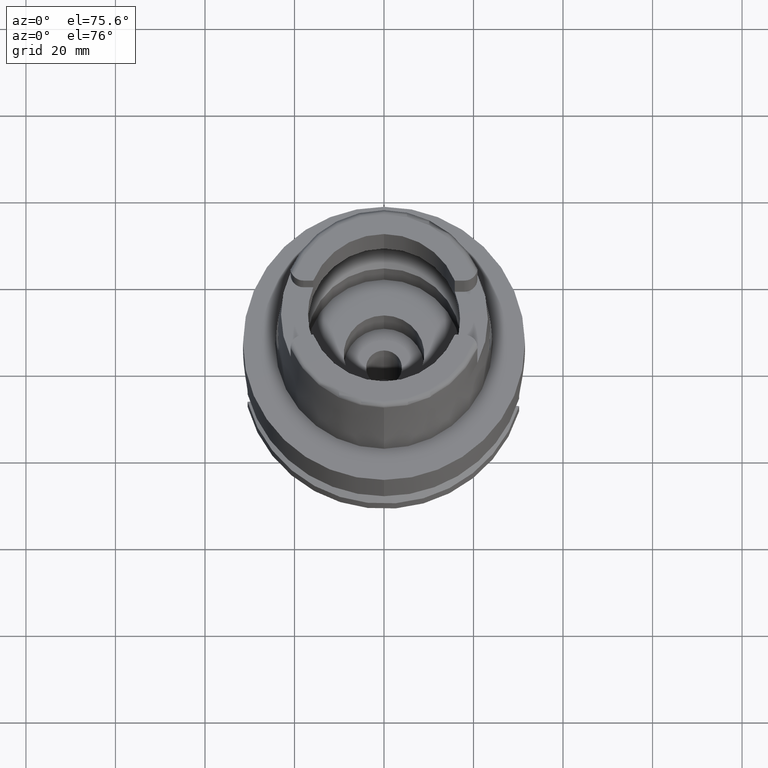
[diagram: clean part render]
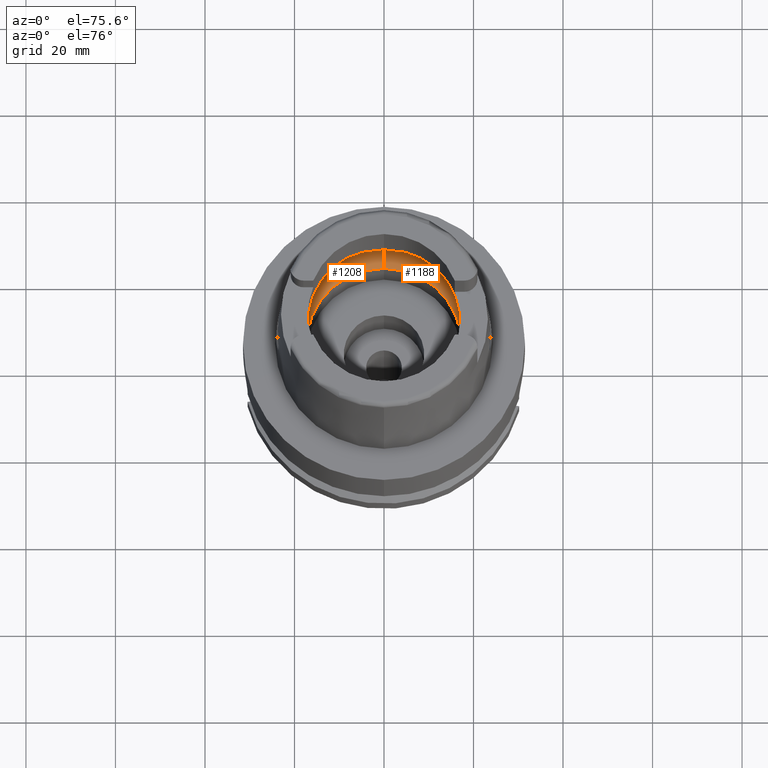
[diagram: same view with one multi-face feature highlighted, each face labeled with its STEP entity id]
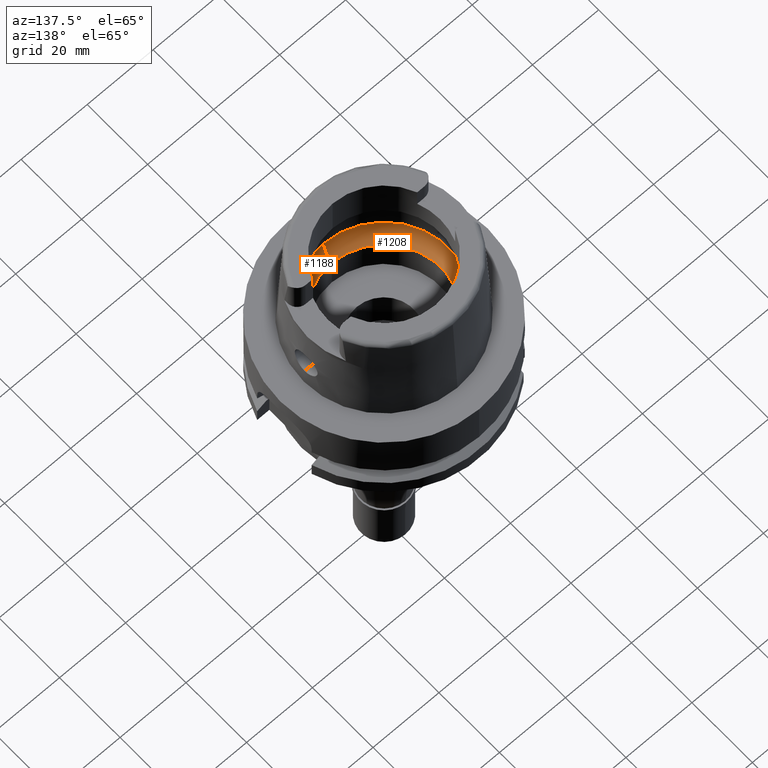
[diagram: same view with one multi-face feature highlighted, each face labeled with its STEP entity id]
A machine part, auxiliary view. The highlighted faces form ONE feature: a constant-radius fillet chain: 2 tangent blend faces with common blend radius 8 mm. The faces share edges in the B-rep.
A second angle (auxiliary view) of the same feature is appended — it is thin or edge-on in the first view.
Their STEP definitions:
[1] entity #1208 (Torus):
#37 = VERTEX_POINT ( 'NONE', #696 ) ;
#116 = CARTESIAN_POINT ( 'NONE',  ( -19.84575864665999845, -2.479085262491000030, 6.186348233825000875 ) ) ;
#129 = EDGE_LOOP ( 'NONE', ( #2428, #4913, #3546, #831, #1566, #3601, #4951 ) ) ;
#163 = EDGE_CURVE ( 'NONE', #3344, #1386, #172, .T. ) ;
#172 = CIRCLE ( 'NONE', #862, 7.999999999999992895 ) ;
#201 = CARTESIAN_POINT ( 'NONE',  ( -19.92547016831344209, -1.335028391786409419, 5.495682638916796314 ) ) ;
#282 = CARTESIAN_POINT ( 'NONE',  ( -19.93856669999437514, 0.8185612903796806172, 5.338678534769514705 ) ) ;
#398 = DIRECTION ( 'NONE',  ( -1.000000000000000000, 0.0000000000000000000, 0.0000000000000000000 ) ) ;
#504 = TOROIDAL_SURFACE ( 'NONE', #2360, 12.00000000000000000, 8.000000000000000000 ) ;
#524 = CARTESIAN_POINT ( 'NONE',  ( -19.92208503460747337, -1.430038535502192065, 5.533134759062107833 ) ) ;
#664 = CARTESIAN_POINT ( 'NONE',  ( -19.94501428476000271, 0.2480004543639204029, 5.249999999999999112 ) ) ;
#696 = CARTESIAN_POINT ( 'NONE',  ( -19.84575864665999845, 2.479085262491000030, 6.186348233825000875 ) ) ;
#709 = B_SPLINE_CURVE_WITH_KNOTS ( 'NONE', 3,
 ( #116, #2677, #3477, #1407, #3094, #1853, #3974, #524, #4350, #2234, #1465, #201, #5155, #2649, #1434 ),
 .UNSPECIFIED., .F., .F.,
 ( 4, 2, 2, 1, 1, 1, 2, 2, 4 ),
 ( 0.0000000000000000000, 0.2499999999999968914, 0.3749999999999954481, 0.4374999999999947264, 0.4687499999999943934, 0.4843749999999941713, 0.4921874999999943934, 0.4999999999999945599, 1.000000000000000000 ),
 .UNSPECIFIED. ) ;
#760 = CARTESIAN_POINT ( 'NONE',  ( 0.0000000000000000000, -12.00000000000000000, 6.186348233825000875 ) ) ;
#774 = AXIS2_PLACEMENT_3D ( 'NONE', #3138, #4395, #3932 ) ;
#831 = ORIENTED_EDGE ( 'NONE', *, *, #163, .T. ) ;
#862 = AXIS2_PLACEMENT_3D ( 'NONE', #5296, #4128, #5371 ) ;
#870 = CARTESIAN_POINT ( 'NONE',  ( 0.0000000000000000000, 20.00000000000000000, 6.186348233825000875 ) ) ;
#944 = EDGE_CURVE ( 'NONE', #3747, #4342, #1644, .T. ) ;
#1123 = CARTESIAN_POINT ( 'NONE',  ( -19.93655182975511053, 0.9261173408848780708, 5.364558887407480547 ) ) ;
#1131 = CARTESIAN_POINT ( 'NONE',  ( 0.0000000000000000000, 0.0000000000000000000, 6.186348233825000875 ) ) ;
#1208 = ADVANCED_FACE ( 'NONE', ( #2104 ), #504, .F. ) ;
#1228 = CARTESIAN_POINT ( 'NONE',  ( -19.88332307774798835, 2.178371670853991304, 5.921391979387152560 ) ) ;
#1386 = VERTEX_POINT ( 'NONE', #870 ) ;
#1407 = CARTESIAN_POINT ( 'NONE',  ( -19.90056792326593893, -1.871072945734564286, 5.748194156571076796 ) ) ;
#1434 = CARTESIAN_POINT ( 'NONE',  ( -19.94501428475999916, 0.0000000000000000000, 5.250000000000000000 ) ) ;
#1465 = CARTESIAN_POINT ( 'NONE',  ( -19.92517794959959332, -1.343610331912327149, 5.498961333877063318 ) ) ;
#1566 = ORIENTED_EDGE ( 'NONE', *, *, #2367, .F. ) ;
#1573 = CARTESIAN_POINT ( 'NONE',  ( -19.92607293039359462, 1.317057967890473247, 5.488889127078770969 ) ) ;
#1639 = EDGE_CURVE ( 'NONE', #3344, #2209, #5261, .T. ) ;
#1644 = CIRCLE ( 'NONE', #2616, 20.00000000000000000 ) ;
#1772 = CARTESIAN_POINT ( 'NONE',  ( 0.0000000000000000000, 0.0000000000000000000, 6.186348233825000875 ) ) ;
#1853 = CARTESIAN_POINT ( 'NONE',  ( -19.91448534792939640, -1.610508948476730318, 5.612924528917788258 ) ) ;
#1930 = DIRECTION ( 'NONE',  ( -0.9922879323327794543, 0.1239542631244973381, 0.0000000000000000000 ) ) ;
#1959 = CARTESIAN_POINT ( 'NONE',  ( -19.93292506332445058, 1.081631408177287756, 5.408972312847152963 ) ) ;
#1983 = CARTESIAN_POINT ( 'NONE',  ( -19.92840419822511322, 1.244363506211097814, 5.462312164958983196 ) ) ;
#2055 = CARTESIAN_POINT ( 'NONE',  ( 0.0000000000000000000, -20.00000000000000000, 6.186348233825000875 ) ) ;
#2104 = FACE_OUTER_BOUND ( 'NONE', #129, .T. ) ;
#2133 = AXIS2_PLACEMENT_3D ( 'NONE', #760, #398, #4197 ) ;
#2209 = VERTEX_POINT ( 'NONE', #2622 ) ;
#2234 = CARTESIAN_POINT ( 'NONE',  ( -19.92467624382533131, -1.358118166600655208, 5.504563616476665366 ) ) ;
#2360 = AXIS2_PLACEMENT_3D ( 'NONE', #1772, #3046, #4189 ) ;
#2367 = EDGE_CURVE ( 'NONE', #37, #1386, #5168, .T. ) ;
#2428 = ORIENTED_EDGE ( 'NONE', *, *, #944, .F. ) ;
#2616 = AXIS2_PLACEMENT_3D ( 'NONE', #1131, #3318, #3679 ) ;
#2622 = CARTESIAN_POINT ( 'NONE',  ( 0.0000000000000000000, -17.25000000000000000, 0.1500000000000999700 ) ) ;
#2649 = CARTESIAN_POINT ( 'NONE',  ( -19.94501428475999560, -0.4960410447731051775, 5.249999999999998224 ) ) ;
#2677 = CARTESIAN_POINT ( 'NONE',  ( -19.86453971831063825, -2.328737623869187257, 6.053878174936200729 ) ) ;
#2759 = CARTESIAN_POINT ( 'NONE',  ( -19.94501428475999916, 0.0000000000000000000, 5.250000000000000000 ) ) ;
#3046 = DIRECTION ( 'NONE',  ( 0.0000000000000000000, 0.0000000000000000000, -1.000000000000000000 ) ) ;
#3094 = CARTESIAN_POINT ( 'NONE',  ( -19.90654456091275648, -1.770007383674442325, 5.691881026707233282 ) ) ;
#3138 = CARTESIAN_POINT ( 'NONE',  ( 0.0000000000000000000, 0.0000000000000000000, 0.1500000000000999700 ) ) ;
#3256 = CARTESIAN_POINT ( 'NONE',  ( -19.90996070568236576, 1.795817770063438124, 5.670328448962781209 ) ) ;
#3318 = DIRECTION ( 'NONE',  ( 0.0000000000000000000, 0.0000000000000000000, -1.000000000000000000 ) ) ;
#3344 = VERTEX_POINT ( 'NONE', #3665 ) ;
#3477 = CARTESIAN_POINT ( 'NONE',  ( -19.88058967141844491, -2.158413397991807425, 5.925203673437435370 ) ) ;
#3546 = ORIENTED_EDGE ( 'NONE', *, *, #1639, .F. ) ;
#3552 = CARTESIAN_POINT ( 'NONE',  ( 0.0000000000000000000, 0.0000000000000000000, 6.186348233825000875 ) ) ;
#3601 = ORIENTED_EDGE ( 'NONE', *, *, #4555, .F. ) ;
#3639 = CARTESIAN_POINT ( 'NONE',  ( -19.92705990198736643, 1.286923474064824324, 5.477697007917331717 ) ) ;
#3665 = CARTESIAN_POINT ( 'NONE',  ( 0.0000000000000000000, 17.25000000000000000, 0.1500000000000999700 ) ) ;
#3667 = CARTESIAN_POINT ( 'NONE',  ( -19.92591701210031729, 1.321752758000885430, 5.490650989109542301 ) ) ;
#3679 = DIRECTION ( 'NONE',  ( 0.0000000000000000000, -1.000000000000000000, 0.0000000000000000000 ) ) ;
#3747 = VERTEX_POINT ( 'NONE', #2055 ) ;
#3760 = EDGE_CURVE ( 'NONE', #2209, #3747, #4861, .T. ) ;
#3916 = CARTESIAN_POINT ( 'NONE',  ( -19.84575864665999845, -2.479085262491000030, 6.186348233825000875 ) ) ;
#3932 = DIRECTION ( 'NONE',  ( 0.0000000000000000000, 1.000000000000000000, 0.0000000000000000000 ) ) ;
#3974 = CARTESIAN_POINT ( 'NONE',  ( -19.91819969907430732, -1.528787881898505896, 5.574826406045655602 ) ) ;
#3994 = DIRECTION ( 'NONE',  ( 0.0000000000000000000, 0.0000000000000000000, -1.000000000000000000 ) ) ;
#4041 = CARTESIAN_POINT ( 'NONE',  ( -19.94501428475999916, 0.0000000000000000000, 5.250000000000000000 ) ) ;
#4046 = CARTESIAN_POINT ( 'NONE',  ( -19.94340238856859315, 0.4850161375187141410, 5.274610197870742034 ) ) ;
#4069 = CARTESIAN_POINT ( 'NONE',  ( -19.93096056484117895, 1.157936378929085297, 5.432577832209988244 ) ) ;
#4128 = DIRECTION ( 'NONE',  ( 1.000000000000000000, 0.0000000000000000000, 0.0000000000000000000 ) ) ;
#4180 = CARTESIAN_POINT ( 'NONE',  ( -19.84575864665999845, 2.479085262491000030, 6.186348233825000875 ) ) ;
#4189 = DIRECTION ( 'NONE',  ( 0.0000000000000000000, -1.000000000000000000, 0.0000000000000000000 ) ) ;
#4197 = DIRECTION ( 'NONE',  ( 0.0000000000000000000, -0.6562500000000006661, -0.7545435292281016393 ) ) ;
#4285 = EDGE_CURVE ( 'NONE', #4342, #5039, #709, .T. ) ;
#4342 = VERTEX_POINT ( 'NONE', #3916 ) ;
#4350 = CARTESIAN_POINT ( 'NONE',  ( -19.92391568384006106, -1.379820152771767061, 5.513021742209446074 ) ) ;
#4395 = DIRECTION ( 'NONE',  ( 0.0000000000000000000, 0.0000000000000000000, 1.000000000000000000 ) ) ;
#4555 = EDGE_CURVE ( 'NONE', #5039, #37, #5102, .T. ) ;
#4861 = CIRCLE ( 'NONE', #2133, 7.999999999999992895 ) ;
#4913 = ORIENTED_EDGE ( 'NONE', *, *, #3760, .F. ) ;
#4951 = ORIENTED_EDGE ( 'NONE', *, *, #4285, .F. ) ;
#4988 = AXIS2_PLACEMENT_3D ( 'NONE', #3552, #3994, #1930 ) ;
#5039 = VERTEX_POINT ( 'NONE', #4041 ) ;
#5102 = B_SPLINE_CURVE_WITH_KNOTS ( 'NONE', 3,
 ( #2759, #664, #4046, #282, #1123, #1959, #4069, #1983, #3639, #5320, #1573, #3667, #3256, #1228, #4180 ),
 .UNSPECIFIED., .F., .F.,
 ( 4, 2, 2, 1, 1, 1, 2, 2, 4 ),
 ( 0.0000000000000000000, 0.2499999999999958367, 0.3749999999999937272, 0.4374999999999923950, 0.4687499999999916178, 0.4843749999999915068, 0.4921874999999913958, 0.4999999999999913403, 1.000000000000000000 ),
 .UNSPECIFIED. ) ;
#5155 = CARTESIAN_POINT ( 'NONE',  ( -19.93856674118999450, -0.9459643382685588575, 5.348222180801255554 ) ) ;
#5168 = CIRCLE ( 'NONE', #4988, 20.00000000000001421 ) ;
#5261 = CIRCLE ( 'NONE', #774, 17.25000000000000000 ) ;
#5296 = CARTESIAN_POINT ( 'NONE',  ( 0.0000000000000000000, 12.00000000000000000, 6.186348233825000875 ) ) ;
#5320 = CARTESIAN_POINT ( 'NONE',  ( -19.92646960797195632, 1.305022935175742305, 5.484398146633392201 ) ) ;
#5371 = DIRECTION ( 'NONE',  ( 0.0000000000000000000, 0.6562500000000006661, -0.7545435292281016393 ) ) ;
[2] entity #1188 (Torus):
#21 = DIRECTION ( 'NONE',  ( 0.0000000000000000000, 1.000000000000000000, 0.0000000000000000000 ) ) ;
#47 = CARTESIAN_POINT ( 'NONE',  ( 19.91448547043104256, 1.610506059394627654, 5.612923151450863735 ) ) ;
#77 = CARTESIAN_POINT ( 'NONE',  ( 19.90056803128309326, 1.871071076466524818, 5.748193068415501372 ) ) ;
#97 = FACE_OUTER_BOUND ( 'NONE', #530, .T. ) ;
#110 = CARTESIAN_POINT ( 'NONE',  ( 19.84575864665999845, -2.479085262491000030, 6.186348233825000875 ) ) ;
#159 = CARTESIAN_POINT ( 'NONE',  ( 19.92705978488601914, -1.286927501708998056, 5.477698479286114974 ) ) ;
#160 = ORIENTED_EDGE ( 'NONE', *, *, #3760, .T. ) ;
#163 = EDGE_CURVE ( 'NONE', #3344, #1386, #172, .T. ) ;
#172 = CIRCLE ( 'NONE', #862, 7.999999999999992895 ) ;
#240 = CARTESIAN_POINT ( 'NONE',  ( 19.93096047318056918, -1.157940144637004565, 5.432579051136745996 ) ) ;
#398 = DIRECTION ( 'NONE',  ( -1.000000000000000000, 0.0000000000000000000, 0.0000000000000000000 ) ) ;
#431 = CARTESIAN_POINT ( 'NONE',  ( 19.92547029497421818, 1.335024297797994697, 5.495681079272209502 ) ) ;
#453 = CARTESIAN_POINT ( 'NONE',  ( 19.94501428475999916, 0.0000000000000000000, 5.250000000000000000 ) ) ;
#514 = CARTESIAN_POINT ( 'NONE',  ( 19.86453976246540520, 2.328737270380783375, 6.053877863480496835 ) ) ;
#530 = EDGE_LOOP ( 'NONE', ( #1764, #1473, #2986, #3265, #160, #3987, #3541 ) ) ;
#564 = CARTESIAN_POINT ( 'NONE',  ( 0.0000000000000000000, 0.0000000000000000000, 6.186348233825000875 ) ) ;
#644 = CARTESIAN_POINT ( 'NONE',  ( 19.93292498447663164, -1.081634996230461887, 5.408973391345237580 ) ) ;
#734 = CARTESIAN_POINT ( 'NONE',  ( 19.84575864665999845, 2.479085262491000030, 6.186348233825000875 ) ) ;
#741 = DIRECTION ( 'NONE',  ( 0.0000000000000000000, -1.000000000000000000, 0.0000000000000000000 ) ) ;
#760 = CARTESIAN_POINT ( 'NONE',  ( 0.0000000000000000000, -12.00000000000000000, 6.186348233825000875 ) ) ;
#819 = EDGE_CURVE ( 'NONE', #1514, #4789, #868, .T. ) ;
#835 = CARTESIAN_POINT ( 'NONE',  ( 19.94501428476000271, -0.2480014564252114029, 5.249999999999999112 ) ) ;
#862 = AXIS2_PLACEMENT_3D ( 'NONE', #5296, #4128, #5371 ) ;
#868 = B_SPLINE_CURVE_WITH_KNOTS ( 'NONE', 3,
 ( #4608, #835, #3957, #3542, #2659, #644, #240, #1502, #159, #5191, #2690, #2304, #4361, #4449, #994 ),
 .UNSPECIFIED., .F., .F.,
 ( 4, 2, 2, 1, 1, 1, 2, 2, 4 ),
 ( 0.0000000000000000000, 0.2500000000000068834, 0.3750000000000103806, 0.4375000000000122125, 0.4687500000000128786, 0.4843750000000129341, 0.4921875000000128231, 0.5000000000000126565, 1.000000000000000000 ),
 .UNSPECIFIED. ) ;
#870 = CARTESIAN_POINT ( 'NONE',  ( 0.0000000000000000000, 20.00000000000000000, 6.186348233825000875 ) ) ;
#980 = DIRECTION ( 'NONE',  ( 0.9922879323327794543, -0.1239542631244973381, 0.0000000000000000000 ) ) ;
#994 = CARTESIAN_POINT ( 'NONE',  ( 19.84575864665999845, -2.479085262491000030, 6.186348233825000875 ) ) ;
#1188 = ADVANCED_FACE ( 'NONE', ( #97 ), #1824, .F. ) ;
#1279 = CARTESIAN_POINT ( 'NONE',  ( 19.92467636941975329, 1.358114210472420869, 5.504562079295808985 ) ) ;
#1385 = EDGE_CURVE ( 'NONE', #1386, #2681, #4633, .T. ) ;
#1386 = VERTEX_POINT ( 'NONE', #870 ) ;
#1473 = ORIENTED_EDGE ( 'NONE', *, *, #1385, .F. ) ;
#1502 = CARTESIAN_POINT ( 'NONE',  ( 19.92840408989147960, -1.244367451165378613, 5.462313551788909649 ) ) ;
#1514 = VERTEX_POINT ( 'NONE', #2389 ) ;
#1609 = CIRCLE ( 'NONE', #2837, 20.00000000000001421 ) ;
#1621 = DIRECTION ( 'NONE',  ( 0.0000000000000000000, 0.0000000000000000000, 1.000000000000000000 ) ) ;
#1723 = CARTESIAN_POINT ( 'NONE',  ( 19.91819982395854893, 1.528784657196633257, 5.574824959534048219 ) ) ;
#1764 = ORIENTED_EDGE ( 'NONE', *, *, #5334, .F. ) ;
#1824 = TOROIDAL_SURFACE ( 'NONE', #2968, 12.00000000000000000, 8.000000000000000000 ) ;
#1909 = CIRCLE ( 'NONE', #4185, 17.25000000000000000 ) ;
#2055 = CARTESIAN_POINT ( 'NONE',  ( 0.0000000000000000000, -20.00000000000000000, 6.186348233825000875 ) ) ;
#2133 = AXIS2_PLACEMENT_3D ( 'NONE', #760, #398, #4197 ) ;
#2195 = CARTESIAN_POINT ( 'NONE',  ( 19.93856678297499840, 0.9459609421639848525, 5.348221403789784389 ) ) ;
#2209 = VERTEX_POINT ( 'NONE', #2622 ) ;
#2255 = DIRECTION ( 'NONE',  ( 0.0000000000000000000, 0.0000000000000000000, -1.000000000000000000 ) ) ;
#2297 = CARTESIAN_POINT ( 'NONE',  ( 0.0000000000000000000, 0.0000000000000000000, 6.186348233825000875 ) ) ;
#2304 = CARTESIAN_POINT ( 'NONE',  ( 19.92591688601886446, -1.321756895885487282, 5.490652547663923855 ) ) ;
#2389 = CARTESIAN_POINT ( 'NONE',  ( 19.94501428475999916, 0.0000000000000000000, 5.250000000000000000 ) ) ;
#2499 = CARTESIAN_POINT ( 'NONE',  ( 0.0000000000000000000, 0.0000000000000000000, 0.1500000000000999700 ) ) ;
#2527 = CARTESIAN_POINT ( 'NONE',  ( 19.94501428475999560, 0.4960390492939688589, 5.249999999999998224 ) ) ;
#2612 = CARTESIAN_POINT ( 'NONE',  ( 19.88058974809684898, 2.158412543077528056, 5.925203020060026304 ) ) ;
#2622 = CARTESIAN_POINT ( 'NONE',  ( 0.0000000000000000000, -17.25000000000000000, 0.1500000000000999700 ) ) ;
#2659 = CARTESIAN_POINT ( 'NONE',  ( 19.93655177456163941, -0.9261205412522545144, 5.364559693844696220 ) ) ;
#2681 = VERTEX_POINT ( 'NONE', #734 ) ;
#2690 = CARTESIAN_POINT ( 'NONE',  ( 19.92607280685505700, -1.317062051808986167, 5.488890658979300063 ) ) ;
#2837 = AXIS2_PLACEMENT_3D ( 'NONE', #2297, #4297, #980 ) ;
#2841 = EDGE_CURVE ( 'NONE', #2209, #3344, #1909, .T. ) ;
#2848 = B_SPLINE_CURVE_WITH_KNOTS ( 'NONE', 3,
 ( #4283, #514, #2612, #77, #5110, #47, #1723, #3798, #4226, #1279, #4697, #431, #2195, #2527, #453 ),
 .UNSPECIFIED., .F., .F.,
 ( 4, 2, 2, 1, 1, 1, 2, 2, 4 ),
 ( 0.0000000000000000000, 0.2500000000000015543, 0.3750000000000022204, 0.4375000000000023315, 0.4687500000000024425, 0.4843750000000026090, 0.4921875000000026090, 0.5000000000000025535, 1.000000000000000000 ),
 .UNSPECIFIED. ) ;
#2968 = AXIS2_PLACEMENT_3D ( 'NONE', #5071, #4631, #5130 ) ;
#2986 = ORIENTED_EDGE ( 'NONE', *, *, #163, .F. ) ;
#3265 = ORIENTED_EDGE ( 'NONE', *, *, #2841, .F. ) ;
#3344 = VERTEX_POINT ( 'NONE', #3665 ) ;
#3541 = ORIENTED_EDGE ( 'NONE', *, *, #819, .F. ) ;
#3542 = CARTESIAN_POINT ( 'NONE',  ( 19.93856665794220717, -0.8185641889833762397, 5.338679171497137332 ) ) ;
#3665 = CARTESIAN_POINT ( 'NONE',  ( 0.0000000000000000000, 17.25000000000000000, 0.1500000000000999700 ) ) ;
#3747 = VERTEX_POINT ( 'NONE', #2055 ) ;
#3760 = EDGE_CURVE ( 'NONE', #2209, #3747, #4861, .T. ) ;
#3765 = AXIS2_PLACEMENT_3D ( 'NONE', #564, #2255, #21 ) ;
#3798 = CARTESIAN_POINT ( 'NONE',  ( 19.92208516036315658, 1.430034890835472972, 5.533133253826981957 ) ) ;
#3957 = CARTESIAN_POINT ( 'NONE',  ( 19.94340237805554139, -0.4850180025757970248, 5.274610396208611718 ) ) ;
#3987 = ORIENTED_EDGE ( 'NONE', *, *, #4277, .F. ) ;
#4128 = DIRECTION ( 'NONE',  ( 1.000000000000000000, 0.0000000000000000000, 0.0000000000000000000 ) ) ;
#4185 = AXIS2_PLACEMENT_3D ( 'NONE', #2499, #1621, #741 ) ;
#4197 = DIRECTION ( 'NONE',  ( 0.0000000000000000000, -0.6562500000000006661, -0.7545435292281016393 ) ) ;
#4226 = CARTESIAN_POINT ( 'NONE',  ( 19.92391580955442976, 1.379816291123153960, 5.513020213660540847 ) ) ;
#4277 = EDGE_CURVE ( 'NONE', #4789, #3747, #1609, .T. ) ;
#4283 = CARTESIAN_POINT ( 'NONE',  ( 19.84575864665999845, 2.479085262491000030, 6.186348233825000875 ) ) ;
#4297 = DIRECTION ( 'NONE',  ( 0.0000000000000000000, 0.0000000000000000000, -1.000000000000000000 ) ) ;
#4361 = CARTESIAN_POINT ( 'NONE',  ( 19.90996057472179359, -1.795819818635384646, 5.670329850438284858 ) ) ;
#4449 = CARTESIAN_POINT ( 'NONE',  ( 19.88332298883959837, -2.178372382681716513, 5.921392606572663198 ) ) ;
#4608 = CARTESIAN_POINT ( 'NONE',  ( 19.94501428475999916, 0.0000000000000000000, 5.250000000000000000 ) ) ;
#4631 = DIRECTION ( 'NONE',  ( 0.0000000000000000000, 0.0000000000000000000, -1.000000000000000000 ) ) ;
#4633 = CIRCLE ( 'NONE', #3765, 20.00000000000000000 ) ;
#4697 = CARTESIAN_POINT ( 'NONE',  ( 19.92517807509134187, 1.343606312468685893, 5.498959791250855211 ) ) ;
#4789 = VERTEX_POINT ( 'NONE', #110 ) ;
#4861 = CIRCLE ( 'NONE', #2133, 7.999999999999992895 ) ;
#5071 = CARTESIAN_POINT ( 'NONE',  ( 0.0000000000000000000, 0.0000000000000000000, 6.186348233825000875 ) ) ;
#5110 = CARTESIAN_POINT ( 'NONE',  ( 19.90654467646836778, 1.770005132905162482, 5.691879807082752762 ) ) ;
#5130 = DIRECTION ( 'NONE',  ( 0.0000000000000000000, -1.000000000000000000, 0.0000000000000000000 ) ) ;
#5191 = CARTESIAN_POINT ( 'NONE',  ( 19.92646948702060783, -1.305026996780926041, 5.484399654313495631 ) ) ;
#5296 = CARTESIAN_POINT ( 'NONE',  ( 0.0000000000000000000, 12.00000000000000000, 6.186348233825000875 ) ) ;
#5334 = EDGE_CURVE ( 'NONE', #2681, #1514, #2848, .T. ) ;
#5371 = DIRECTION ( 'NONE',  ( 0.0000000000000000000, 0.6562500000000006661, -0.7545435292281016393 ) ) ;